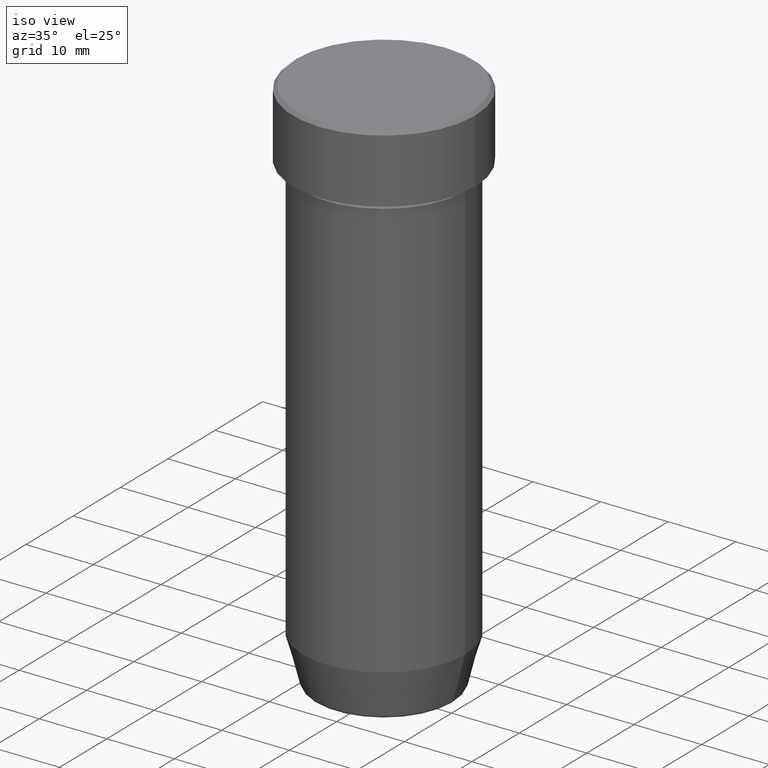
[diagram: clean part render]
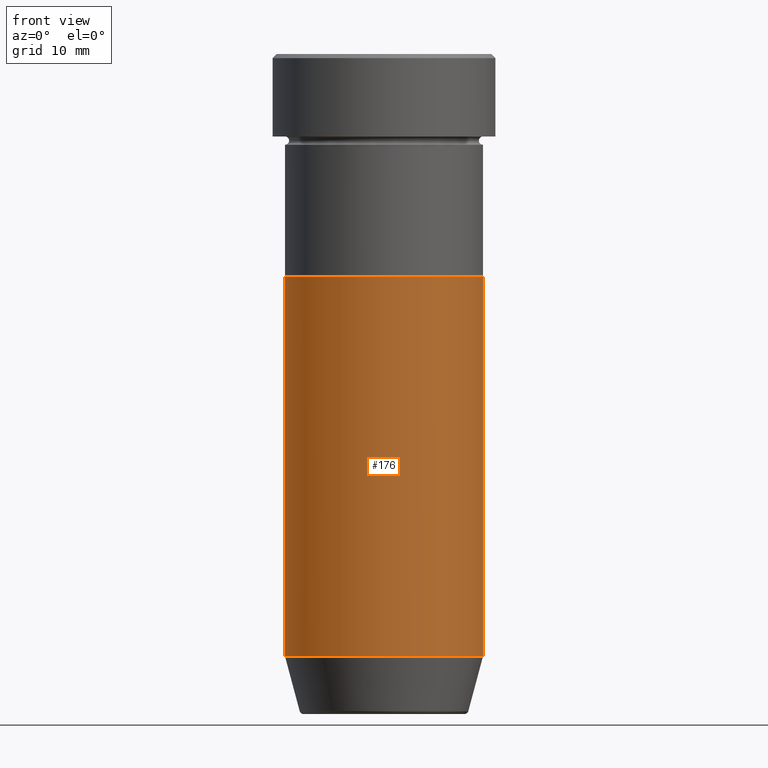
[diagram: tour spotlight — one face highlighted and labeled with its STEP entity id]
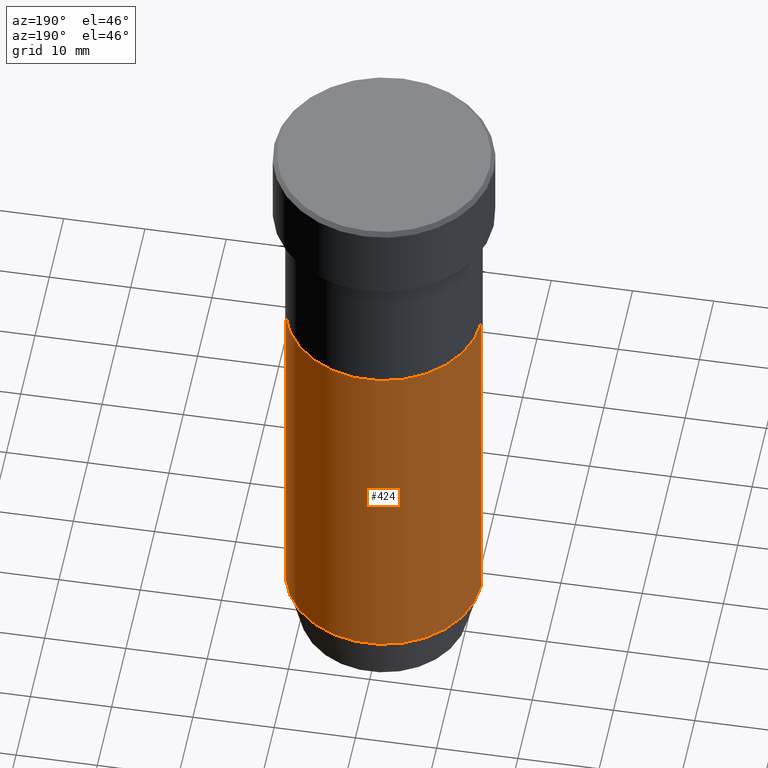
[diagram: tour spotlight — one face highlighted and labeled with its STEP entity id]
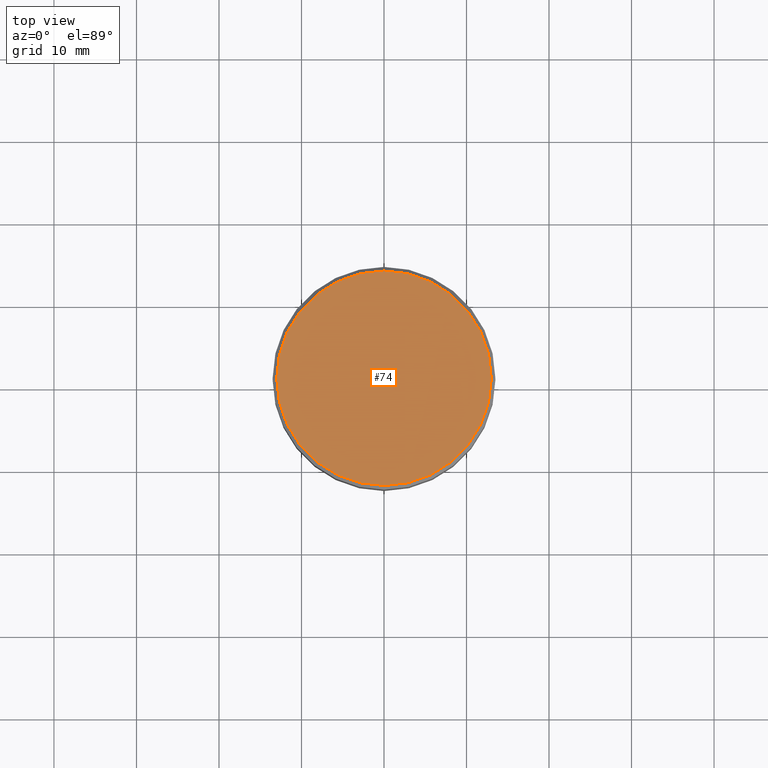
[diagram: tour spotlight — one face highlighted and labeled with its STEP entity id]
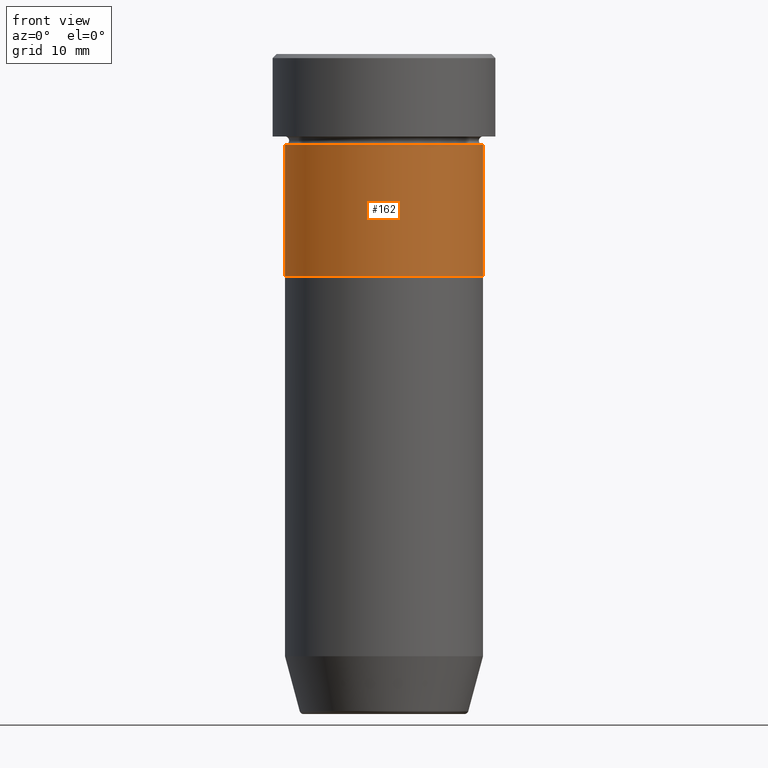
[diagram: tour spotlight — one face highlighted and labeled with its STEP entity id]
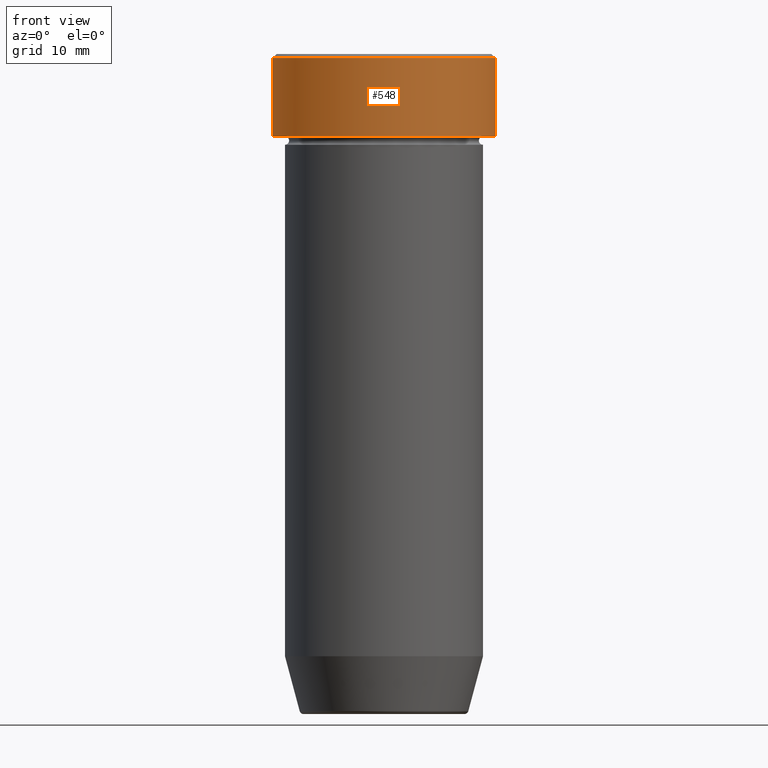
[diagram: tour spotlight — one face highlighted and labeled with its STEP entity id]
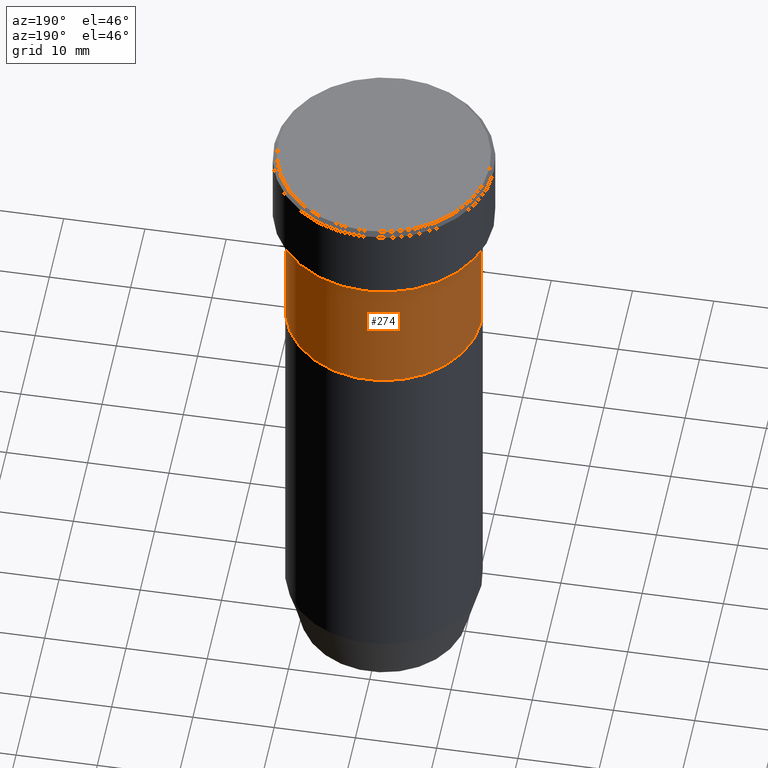
[diagram: tour spotlight — one face highlighted and labeled with its STEP entity id]
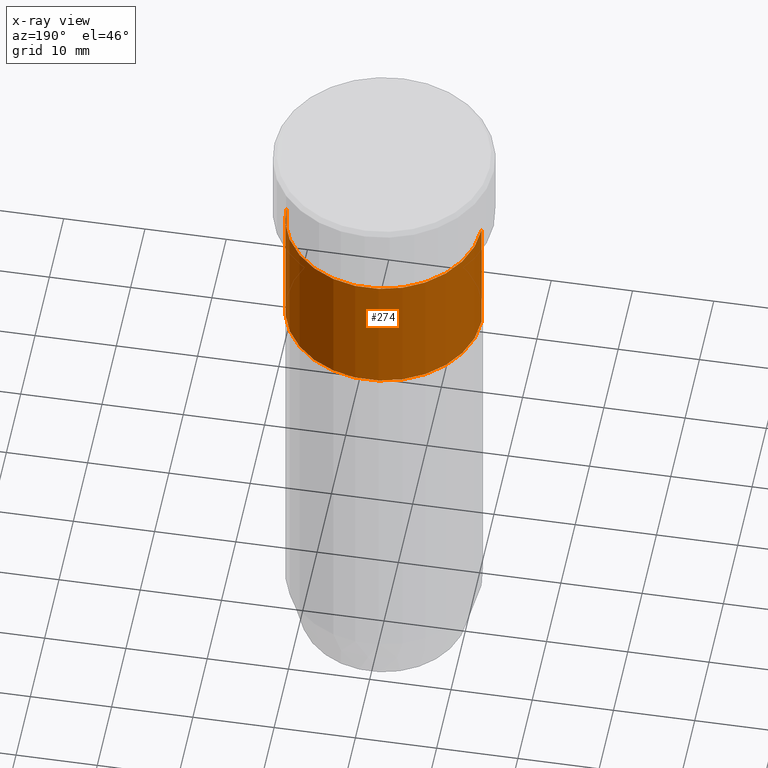
[diagram: x-ray of the same camera — body ghosted, this tour face saturated]
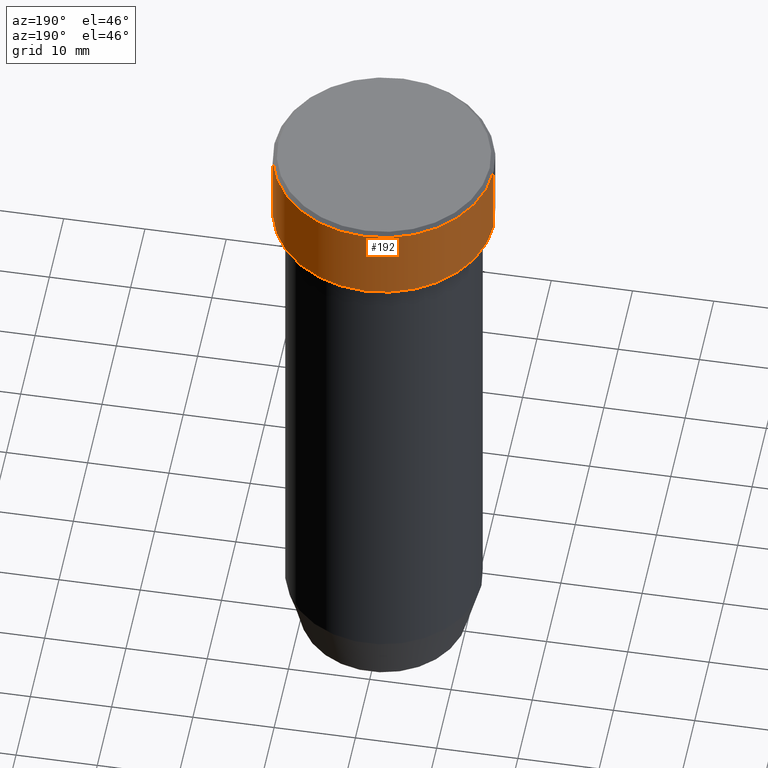
[diagram: tour spotlight — one face highlighted and labeled with its STEP entity id]
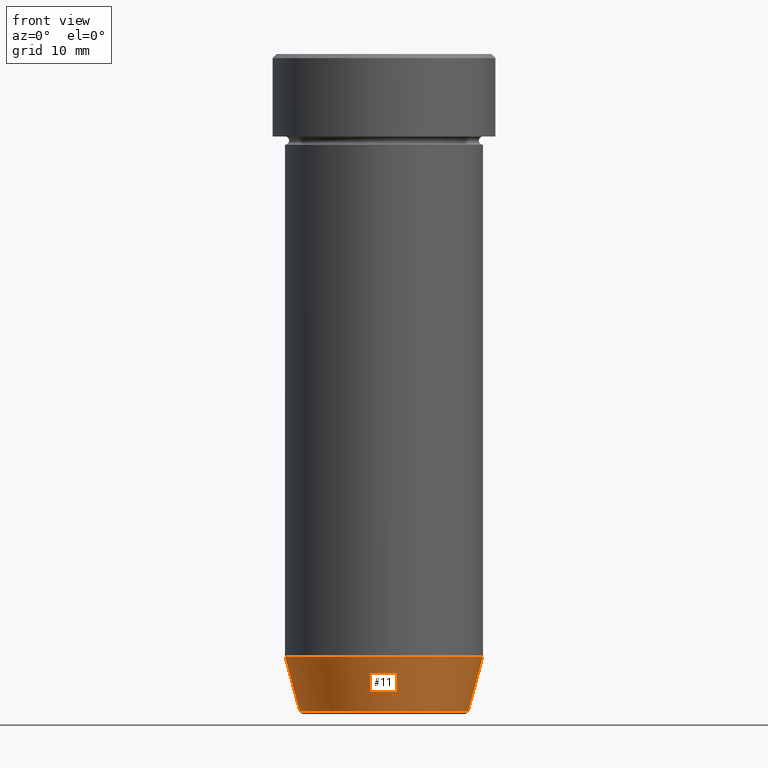
[diagram: tour spotlight — one face highlighted and labeled with its STEP entity id]
A machine part: a face-by-face anatomy tour. The part has 21 B-rep faces; the first image is the clean iso view, then the 8 largest visible faces are spotlighted one at a time (largest first), each with its STEP entity span.

Face 1 — front view, entity #176. In plain terms, the highlighted cylindrical surface (partial cylindrical patch) has radius 12 mm, axis along (-0, -0, 1).
Definition (entity closure, byte-faithful):
#15 = LINE ( 'NONE', #551, #505 ) ;
#47 = DIRECTION ( 'NONE',  ( -0.000000000000000000, -0.000000000000000000, 1.000000000000000000 ) ) ;
#49 = VERTEX_POINT ( 'NONE', #138 ) ;
#61 = ORIENTED_EDGE ( 'NONE', *, *, #129, .T. ) ;
#119 = LINE ( 'NONE', #261, #173 ) ;
#129 = EDGE_CURVE ( 'NONE', #49, #378, #578, .T. ) ;
#138 = CARTESIAN_POINT ( 'NONE',  ( -12.00000000000000000, 1.469576158976823947E-15, -73.00000000000000000 ) ) ;
#139 = AXIS2_PLACEMENT_3D ( 'NONE', #458, #47, #418 ) ;
#157 = CYLINDRICAL_SURFACE ( 'NONE', #172, 12.00000000000000000 ) ;
#169 = DIRECTION ( 'NONE',  ( -0.000000000000000000, -0.000000000000000000, 1.000000000000000000 ) ) ;
#172 = AXIS2_PLACEMENT_3D ( 'NONE', #506, #463, #509 ) ;
#173 = VECTOR ( 'NONE', #169, 1000.000000000000000 ) ;
#174 = CARTESIAN_POINT ( 'NONE',  ( -12.00000000000000000, 1.469576158976823947E-15, -27.00000000000000000 ) ) ;
#176 = ADVANCED_FACE ( 'NONE', ( #200 ), #157, .T. ) ;
#200 = FACE_OUTER_BOUND ( 'NONE', #203, .T. ) ;
#203 = EDGE_LOOP ( 'NONE', ( #271, #61, #419, #483 ) ) ;
#214 = CARTESIAN_POINT ( 'NONE',  ( 0.000000000000000000, 0.000000000000000000, -27.00000000000000000 ) ) ;
#235 = CIRCLE ( 'NONE', #285, 12.00000000000000000 ) ;
#238 = EDGE_CURVE ( 'NONE', #49, #450, #15, .T. ) ;
#239 = CARTESIAN_POINT ( 'NONE',  ( 12.00000000000000000, 0.000000000000000000, -27.00000000000000000 ) ) ;
#261 = CARTESIAN_POINT ( 'NONE',  ( 12.00000000000000000, 0.000000000000000000, 0.000000000000000000 ) ) ;
#271 = ORIENTED_EDGE ( 'NONE', *, *, #238, .F. ) ;
#285 = AXIS2_PLACEMENT_3D ( 'NONE', #214, #355, #303 ) ;
#301 = DIRECTION ( 'NONE',  ( -0.000000000000000000, -0.000000000000000000, 1.000000000000000000 ) ) ;
#303 = DIRECTION ( 'NONE',  ( 1.000000000000000000, 0.000000000000000000, 0.000000000000000000 ) ) ;
#355 = DIRECTION ( 'NONE',  ( -0.000000000000000000, -0.000000000000000000, 1.000000000000000000 ) ) ;
#378 = VERTEX_POINT ( 'NONE', #489 ) ;
#418 = DIRECTION ( 'NONE',  ( 1.000000000000000000, 0.000000000000000000, 0.000000000000000000 ) ) ;
#419 = ORIENTED_EDGE ( 'NONE', *, *, #478, .T. ) ;
#447 = EDGE_CURVE ( 'NONE', #450, #536, #235, .T. ) ;
#450 = VERTEX_POINT ( 'NONE', #174 ) ;
#458 = CARTESIAN_POINT ( 'NONE',  ( 0.000000000000000000, 0.000000000000000000, -73.00000000000000000 ) ) ;
#463 = DIRECTION ( 'NONE',  ( -0.000000000000000000, -0.000000000000000000, 1.000000000000000000 ) ) ;
#478 = EDGE_CURVE ( 'NONE', #378, #536, #119, .T. ) ;
#483 = ORIENTED_EDGE ( 'NONE', *, *, #447, .F. ) ;
#489 = CARTESIAN_POINT ( 'NONE',  ( 12.00000000000000000, 0.000000000000000000, -73.00000000000000000 ) ) ;
#505 = VECTOR ( 'NONE', #301, 1000.000000000000000 ) ;
#506 = CARTESIAN_POINT ( 'NONE',  ( 0.000000000000000000, 0.000000000000000000, 0.000000000000000000 ) ) ;
#509 = DIRECTION ( 'NONE',  ( 1.000000000000000000, 0.000000000000000000, 0.000000000000000000 ) ) ;
#536 = VERTEX_POINT ( 'NONE', #239 ) ;
#551 = CARTESIAN_POINT ( 'NONE',  ( -12.00000000000000000, 1.469576158976823947E-15, 0.000000000000000000 ) ) ;
#578 = CIRCLE ( 'NONE', #139, 12.00000000000000000 ) ;

Face 2 — auxiliary view, entity #424. In plain terms, the highlighted cylindrical surface (partial cylindrical patch) has radius 12 mm, axis along (-0, -0, 1).
Definition (entity closure, byte-faithful):
#15 = LINE ( 'NONE', #551, #505 ) ;
#49 = VERTEX_POINT ( 'NONE', #138 ) ;
#52 = DIRECTION ( 'NONE',  ( -0.000000000000000000, -0.000000000000000000, 1.000000000000000000 ) ) ;
#119 = LINE ( 'NONE', #261, #173 ) ;
#124 = DIRECTION ( 'NONE',  ( -0.000000000000000000, -0.000000000000000000, 1.000000000000000000 ) ) ;
#138 = CARTESIAN_POINT ( 'NONE',  ( -12.00000000000000000, 1.469576158976823947E-15, -73.00000000000000000 ) ) ;
#141 = EDGE_CURVE ( 'NONE', #536, #450, #220, .T. ) ;
#149 = AXIS2_PLACEMENT_3D ( 'NONE', #284, #52, #342 ) ;
#166 = DIRECTION ( 'NONE',  ( 1.000000000000000000, 0.000000000000000000, 0.000000000000000000 ) ) ;
#169 = DIRECTION ( 'NONE',  ( -0.000000000000000000, -0.000000000000000000, 1.000000000000000000 ) ) ;
#173 = VECTOR ( 'NONE', #169, 1000.000000000000000 ) ;
#174 = CARTESIAN_POINT ( 'NONE',  ( -12.00000000000000000, 1.469576158976823947E-15, -27.00000000000000000 ) ) ;
#220 = CIRCLE ( 'NONE', #226, 12.00000000000000000 ) ;
#224 = ORIENTED_EDGE ( 'NONE', *, *, #478, .F. ) ;
#226 = AXIS2_PLACEMENT_3D ( 'NONE', #498, #457, #273 ) ;
#238 = EDGE_CURVE ( 'NONE', #49, #450, #15, .T. ) ;
#239 = CARTESIAN_POINT ( 'NONE',  ( 12.00000000000000000, 0.000000000000000000, -27.00000000000000000 ) ) ;
#261 = CARTESIAN_POINT ( 'NONE',  ( 12.00000000000000000, 0.000000000000000000, 0.000000000000000000 ) ) ;
#273 = DIRECTION ( 'NONE',  ( 1.000000000000000000, 0.000000000000000000, 0.000000000000000000 ) ) ;
#284 = CARTESIAN_POINT ( 'NONE',  ( 0.000000000000000000, 0.000000000000000000, -73.00000000000000000 ) ) ;
#299 = AXIS2_PLACEMENT_3D ( 'NONE', #521, #124, #166 ) ;
#301 = DIRECTION ( 'NONE',  ( -0.000000000000000000, -0.000000000000000000, 1.000000000000000000 ) ) ;
#304 = EDGE_CURVE ( 'NONE', #378, #49, #401, .T. ) ;
#342 = DIRECTION ( 'NONE',  ( 1.000000000000000000, 0.000000000000000000, 0.000000000000000000 ) ) ;
#354 = CYLINDRICAL_SURFACE ( 'NONE', #299, 12.00000000000000000 ) ;
#378 = VERTEX_POINT ( 'NONE', #489 ) ;
#388 = ORIENTED_EDGE ( 'NONE', *, *, #304, .T. ) ;
#401 = CIRCLE ( 'NONE', #149, 12.00000000000000000 ) ;
#424 = ADVANCED_FACE ( 'NONE', ( #575 ), #354, .T. ) ;
#450 = VERTEX_POINT ( 'NONE', #174 ) ;
#457 = DIRECTION ( 'NONE',  ( -0.000000000000000000, -0.000000000000000000, 1.000000000000000000 ) ) ;
#478 = EDGE_CURVE ( 'NONE', #378, #536, #119, .T. ) ;
#489 = CARTESIAN_POINT ( 'NONE',  ( 12.00000000000000000, 0.000000000000000000, -73.00000000000000000 ) ) ;
#498 = CARTESIAN_POINT ( 'NONE',  ( 0.000000000000000000, 0.000000000000000000, -27.00000000000000000 ) ) ;
#505 = VECTOR ( 'NONE', #301, 1000.000000000000000 ) ;
#507 = ORIENTED_EDGE ( 'NONE', *, *, #141, .F. ) ;
#514 = ORIENTED_EDGE ( 'NONE', *, *, #238, .T. ) ;
#521 = CARTESIAN_POINT ( 'NONE',  ( 0.000000000000000000, 0.000000000000000000, 0.000000000000000000 ) ) ;
#536 = VERTEX_POINT ( 'NONE', #239 ) ;
#551 = CARTESIAN_POINT ( 'NONE',  ( -12.00000000000000000, 1.469576158976823947E-15, 0.000000000000000000 ) ) ;
#562 = EDGE_LOOP ( 'NONE', ( #388, #514, #507, #224 ) ) ;
#575 = FACE_OUTER_BOUND ( 'NONE', #562, .T. ) ;

Face 3 — top view, entity #74. In plain terms, the highlighted planar face has unit normal (0, -0, 1).
Definition (entity closure, byte-faithful):
#12 = CARTESIAN_POINT ( 'NONE',  ( 0.000000000000000000, 0.000000000000000000, 0.000000000000000000 ) ) ;
#33 = CIRCLE ( 'NONE', #316, 12.99999999999999645 ) ;
#40 = DIRECTION ( 'NONE',  ( -0.000000000000000000, -0.000000000000000000, 1.000000000000000000 ) ) ;
#54 = CARTESIAN_POINT ( 'NONE',  ( 12.99999999999999645, 1.622657008870242882E-15, 0.000000000000000000 ) ) ;
#69 = AXIS2_PLACEMENT_3D ( 'NONE', #281, #234, #539 ) ;
#74 = ADVANCED_FACE ( 'NONE', ( #87 ), #142, .T. ) ;
#79 = AXIS2_PLACEMENT_3D ( 'NONE', #321, #40, #104 ) ;
#87 = FACE_OUTER_BOUND ( 'NONE', #294, .T. ) ;
#104 = DIRECTION ( 'NONE',  ( 1.000000000000000000, 0.000000000000000000, 0.000000000000000000 ) ) ;
#142 = PLANE ( 'NONE',  #69 ) ;
#191 = CARTESIAN_POINT ( 'NONE',  ( -12.99999999999999645, 0.000000000000000000, 0.000000000000000000 ) ) ;
#204 = EDGE_CURVE ( 'NONE', #217, #510, #33, .T. ) ;
#217 = VERTEX_POINT ( 'NONE', #54 ) ;
#234 = DIRECTION ( 'NONE',  ( 0.000000000000000000, -0.000000000000000000, 1.000000000000000000 ) ) ;
#242 = ORIENTED_EDGE ( 'NONE', *, *, #592, .T. ) ;
#281 = CARTESIAN_POINT ( 'NONE',  ( 0.000000000000000000, 0.000000000000000000, 0.000000000000000000 ) ) ;
#294 = EDGE_LOOP ( 'NONE', ( #242, #331 ) ) ;
#316 = AXIS2_PLACEMENT_3D ( 'NONE', #12, #380, #429 ) ;
#321 = CARTESIAN_POINT ( 'NONE',  ( 0.000000000000000000, 0.000000000000000000, 0.000000000000000000 ) ) ;
#331 = ORIENTED_EDGE ( 'NONE', *, *, #204, .T. ) ;
#350 = CIRCLE ( 'NONE', #79, 12.99999999999999645 ) ;
#380 = DIRECTION ( 'NONE',  ( -0.000000000000000000, -0.000000000000000000, 1.000000000000000000 ) ) ;
#429 = DIRECTION ( 'NONE',  ( 1.000000000000000000, 0.000000000000000000, 0.000000000000000000 ) ) ;
#510 = VERTEX_POINT ( 'NONE', #191 ) ;
#539 = DIRECTION ( 'NONE',  ( 1.000000000000000000, 0.000000000000000000, 0.000000000000000000 ) ) ;
#592 = EDGE_CURVE ( 'NONE', #510, #217, #350, .T. ) ;

Face 4 — front view, entity #162. In plain terms, the highlighted cylindrical surface (partial cylindrical patch) has radius 12 mm, axis along (-0, -0, 1).
Definition (entity closure, byte-faithful):
#6 = VERTEX_POINT ( 'NONE', #322 ) ;
#46 = DIRECTION ( 'NONE',  ( -0.000000000000000000, -0.000000000000000000, 1.000000000000000000 ) ) ;
#66 = EDGE_CURVE ( 'NONE', #6, #291, #410, .T. ) ;
#81 = DIRECTION ( 'NONE',  ( 1.000000000000000000, 0.000000000000000000, 0.000000000000000000 ) ) ;
#101 = ORIENTED_EDGE ( 'NONE', *, *, #344, .F. ) ;
#102 = EDGE_CURVE ( 'NONE', #279, #594, #596, .T. ) ;
#137 = CARTESIAN_POINT ( 'NONE',  ( -12.00000000000000000, 1.469576158976823947E-15, 0.000000000000000000 ) ) ;
#146 = EDGE_CURVE ( 'NONE', #6, #279, #554, .T. ) ;
#153 = ORIENTED_EDGE ( 'NONE', *, *, #146, .T. ) ;
#162 = ADVANCED_FACE ( 'NONE', ( #233 ), #375, .T. ) ;
#178 = VECTOR ( 'NONE', #270, 1000.000000000000000 ) ;
#233 = FACE_OUTER_BOUND ( 'NONE', #564, .T. ) ;
#252 = CARTESIAN_POINT ( 'NONE',  ( -12.00000000000000000, 1.469576158976823947E-15, -11.00000000000000000 ) ) ;
#270 = DIRECTION ( 'NONE',  ( -0.000000000000000000, -0.000000000000000000, 1.000000000000000000 ) ) ;
#279 = VERTEX_POINT ( 'NONE', #479 ) ;
#291 = VERTEX_POINT ( 'NONE', #252 ) ;
#322 = CARTESIAN_POINT ( 'NONE',  ( -12.00000000000000000, 1.469576158976823947E-15, -27.00000000000000000 ) ) ;
#332 = CARTESIAN_POINT ( 'NONE',  ( 12.00000000000000000, 0.000000000000000000, 0.000000000000000000 ) ) ;
#344 = EDGE_CURVE ( 'NONE', #291, #594, #359, .T. ) ;
#346 = CARTESIAN_POINT ( 'NONE',  ( 0.000000000000000000, 0.000000000000000000, -11.00000000000000000 ) ) ;
#358 = AXIS2_PLACEMENT_3D ( 'NONE', #586, #546, #369 ) ;
#359 = CIRCLE ( 'NONE', #567, 12.00000000000000000 ) ;
#363 = DIRECTION ( 'NONE',  ( 1.000000000000000000, 0.000000000000000000, 0.000000000000000000 ) ) ;
#364 = VECTOR ( 'NONE', #595, 1000.000000000000000 ) ;
#369 = DIRECTION ( 'NONE',  ( 1.000000000000000000, 0.000000000000000000, 0.000000000000000000 ) ) ;
#375 = CYLINDRICAL_SURFACE ( 'NONE', #358, 12.00000000000000000 ) ;
#402 = DIRECTION ( 'NONE',  ( -0.000000000000000000, -0.000000000000000000, 1.000000000000000000 ) ) ;
#410 = LINE ( 'NONE', #137, #178 ) ;
#452 = CARTESIAN_POINT ( 'NONE',  ( 0.000000000000000000, 0.000000000000000000, -27.00000000000000000 ) ) ;
#453 = AXIS2_PLACEMENT_3D ( 'NONE', #452, #46, #81 ) ;
#479 = CARTESIAN_POINT ( 'NONE',  ( 12.00000000000000000, 0.000000000000000000, -27.00000000000000000 ) ) ;
#546 = DIRECTION ( 'NONE',  ( -0.000000000000000000, -0.000000000000000000, 1.000000000000000000 ) ) ;
#553 = CARTESIAN_POINT ( 'NONE',  ( 12.00000000000000000, 0.000000000000000000, -11.00000000000000000 ) ) ;
#554 = CIRCLE ( 'NONE', #453, 12.00000000000000000 ) ;
#564 = EDGE_LOOP ( 'NONE', ( #579, #153, #587, #101 ) ) ;
#567 = AXIS2_PLACEMENT_3D ( 'NONE', #346, #402, #363 ) ;
#579 = ORIENTED_EDGE ( 'NONE', *, *, #66, .F. ) ;
#586 = CARTESIAN_POINT ( 'NONE',  ( 0.000000000000000000, 0.000000000000000000, 0.000000000000000000 ) ) ;
#587 = ORIENTED_EDGE ( 'NONE', *, *, #102, .T. ) ;
#594 = VERTEX_POINT ( 'NONE', #553 ) ;
#595 = DIRECTION ( 'NONE',  ( -0.000000000000000000, -0.000000000000000000, 1.000000000000000000 ) ) ;
#596 = LINE ( 'NONE', #332, #364 ) ;

Face 5 — front view, entity #548. In plain terms, the highlighted cylindrical surface (partial cylindrical patch) has radius 13.5 mm, axis along (-0, -0, 1).
Definition (entity closure, byte-faithful):
#17 = CARTESIAN_POINT ( 'NONE',  ( -13.50000000000000000, 1.653273178848926867E-15, -0.5000000000000091038 ) ) ;
#41 = CARTESIAN_POINT ( 'NONE',  ( -13.50000000000000000, 1.653273178848926867E-15, 0.000000000000000000 ) ) ;
#42 = AXIS2_PLACEMENT_3D ( 'NONE', #347, #250, #245 ) ;
#44 = CARTESIAN_POINT ( 'NONE',  ( 13.50000000000000000, 0.000000000000000000, 0.000000000000000000 ) ) ;
#48 = EDGE_CURVE ( 'NONE', #571, #215, #308, .T. ) ;
#93 = EDGE_CURVE ( 'NONE', #107, #571, #593, .T. ) ;
#107 = VERTEX_POINT ( 'NONE', #330 ) ;
#135 = ORIENTED_EDGE ( 'NONE', *, *, #212, .T. ) ;
#155 = CARTESIAN_POINT ( 'NONE',  ( -13.50000000000000000, 1.653273178848926867E-15, -10.00000000000000000 ) ) ;
#171 = EDGE_CURVE ( 'NONE', #307, #215, #535, .T. ) ;
#181 = CARTESIAN_POINT ( 'NONE',  ( 0.000000000000000000, 0.000000000000000000, -0.5000000000000091038 ) ) ;
#182 = ORIENTED_EDGE ( 'NONE', *, *, #93, .T. ) ;
#183 = DIRECTION ( 'NONE',  ( -0.000000000000000000, -0.000000000000000000, 1.000000000000000000 ) ) ;
#212 = EDGE_CURVE ( 'NONE', #307, #107, #496, .T. ) ;
#215 = VERTEX_POINT ( 'NONE', #17 ) ;
#245 = DIRECTION ( 'NONE',  ( 1.000000000000000000, 0.000000000000000000, 0.000000000000000000 ) ) ;
#250 = DIRECTION ( 'NONE',  ( -0.000000000000000000, -0.000000000000000000, 1.000000000000000000 ) ) ;
#278 = DIRECTION ( 'NONE',  ( 0.000000000000000000, 0.000000000000000000, -1.000000000000000000 ) ) ;
#283 = VECTOR ( 'NONE', #183, 1000.000000000000000 ) ;
#307 = VERTEX_POINT ( 'NONE', #155 ) ;
#308 = CIRCLE ( 'NONE', #532, 13.50000000000000000 ) ;
#330 = CARTESIAN_POINT ( 'NONE',  ( 13.50000000000000000, 0.000000000000000000, -10.00000000000000000 ) ) ;
#347 = CARTESIAN_POINT ( 'NONE',  ( 0.000000000000000000, 0.000000000000000000, -10.00000000000000000 ) ) ;
#367 = DIRECTION ( 'NONE',  ( 1.000000000000000000, 0.000000000000000000, 0.000000000000000000 ) ) ;
#379 = FACE_OUTER_BOUND ( 'NONE', #487, .T. ) ;
#381 = CYLINDRICAL_SURFACE ( 'NONE', #395, 13.50000000000000000 ) ;
#395 = AXIS2_PLACEMENT_3D ( 'NONE', #460, #537, #367 ) ;
#411 = DIRECTION ( 'NONE',  ( 1.000000000000000000, 0.000000000000000000, 0.000000000000000000 ) ) ;
#444 = VECTOR ( 'NONE', #565, 1000.000000000000000 ) ;
#459 = ORIENTED_EDGE ( 'NONE', *, *, #171, .F. ) ;
#460 = CARTESIAN_POINT ( 'NONE',  ( 0.000000000000000000, 0.000000000000000000, 0.000000000000000000 ) ) ;
#468 = CARTESIAN_POINT ( 'NONE',  ( 13.50000000000000000, 0.000000000000000000, -0.5000000000000091038 ) ) ;
#487 = EDGE_LOOP ( 'NONE', ( #459, #135, #182, #530 ) ) ;
#496 = CIRCLE ( 'NONE', #42, 13.50000000000000000 ) ;
#530 = ORIENTED_EDGE ( 'NONE', *, *, #48, .T. ) ;
#532 = AXIS2_PLACEMENT_3D ( 'NONE', #181, #278, #411 ) ;
#535 = LINE ( 'NONE', #41, #444 ) ;
#537 = DIRECTION ( 'NONE',  ( -0.000000000000000000, -0.000000000000000000, 1.000000000000000000 ) ) ;
#548 = ADVANCED_FACE ( 'NONE', ( #379 ), #381, .T. ) ;
#565 = DIRECTION ( 'NONE',  ( -0.000000000000000000, -0.000000000000000000, 1.000000000000000000 ) ) ;
#571 = VERTEX_POINT ( 'NONE', #468 ) ;
#593 = LINE ( 'NONE', #44, #283 ) ;

Face 6 — auxiliary view, entity #274. An x-ray twin of the same camera follows (body ghosted, this face saturated) — the face is partly hidden behind the body. In plain terms, the highlighted cylindrical surface (partial cylindrical patch) has radius 12 mm, axis along (-0, -0, 1).
Definition (entity closure, byte-faithful):
#1 = CARTESIAN_POINT ( 'NONE',  ( 0.000000000000000000, 0.000000000000000000, -11.00000000000000000 ) ) ;
#4 = DIRECTION ( 'NONE',  ( -0.000000000000000000, -0.000000000000000000, 1.000000000000000000 ) ) ;
#6 = VERTEX_POINT ( 'NONE', #322 ) ;
#24 = ORIENTED_EDGE ( 'NONE', *, *, #570, .F. ) ;
#34 = EDGE_LOOP ( 'NONE', ( #484, #43, #24, #92 ) ) ;
#43 = ORIENTED_EDGE ( 'NONE', *, *, #66, .T. ) ;
#66 = EDGE_CURVE ( 'NONE', #6, #291, #410, .T. ) ;
#88 = CIRCLE ( 'NONE', #327, 12.00000000000000000 ) ;
#92 = ORIENTED_EDGE ( 'NONE', *, *, #102, .F. ) ;
#102 = EDGE_CURVE ( 'NONE', #279, #594, #596, .T. ) ;
#115 = CARTESIAN_POINT ( 'NONE',  ( 0.000000000000000000, 0.000000000000000000, 0.000000000000000000 ) ) ;
#137 = CARTESIAN_POINT ( 'NONE',  ( -12.00000000000000000, 1.469576158976823947E-15, 0.000000000000000000 ) ) ;
#144 = DIRECTION ( 'NONE',  ( -0.000000000000000000, -0.000000000000000000, 1.000000000000000000 ) ) ;
#147 = CYLINDRICAL_SURFACE ( 'NONE', #517, 12.00000000000000000 ) ;
#178 = VECTOR ( 'NONE', #270, 1000.000000000000000 ) ;
#185 = EDGE_CURVE ( 'NONE', #279, #6, #88, .T. ) ;
#193 = DIRECTION ( 'NONE',  ( 1.000000000000000000, 0.000000000000000000, 0.000000000000000000 ) ) ;
#194 = DIRECTION ( 'NONE',  ( 1.000000000000000000, 0.000000000000000000, 0.000000000000000000 ) ) ;
#196 = FACE_OUTER_BOUND ( 'NONE', #34, .T. ) ;
#206 = CARTESIAN_POINT ( 'NONE',  ( 0.000000000000000000, 0.000000000000000000, -27.00000000000000000 ) ) ;
#236 = AXIS2_PLACEMENT_3D ( 'NONE', #1, #287, #194 ) ;
#252 = CARTESIAN_POINT ( 'NONE',  ( -12.00000000000000000, 1.469576158976823947E-15, -11.00000000000000000 ) ) ;
#270 = DIRECTION ( 'NONE',  ( -0.000000000000000000, -0.000000000000000000, 1.000000000000000000 ) ) ;
#274 = ADVANCED_FACE ( 'NONE', ( #196 ), #147, .T. ) ;
#279 = VERTEX_POINT ( 'NONE', #479 ) ;
#287 = DIRECTION ( 'NONE',  ( -0.000000000000000000, -0.000000000000000000, 1.000000000000000000 ) ) ;
#291 = VERTEX_POINT ( 'NONE', #252 ) ;
#322 = CARTESIAN_POINT ( 'NONE',  ( -12.00000000000000000, 1.469576158976823947E-15, -27.00000000000000000 ) ) ;
#327 = AXIS2_PLACEMENT_3D ( 'NONE', #206, #4, #193 ) ;
#332 = CARTESIAN_POINT ( 'NONE',  ( 12.00000000000000000, 0.000000000000000000, 0.000000000000000000 ) ) ;
#333 = DIRECTION ( 'NONE',  ( 1.000000000000000000, 0.000000000000000000, 0.000000000000000000 ) ) ;
#364 = VECTOR ( 'NONE', #595, 1000.000000000000000 ) ;
#410 = LINE ( 'NONE', #137, #178 ) ;
#462 = CIRCLE ( 'NONE', #236, 12.00000000000000000 ) ;
#479 = CARTESIAN_POINT ( 'NONE',  ( 12.00000000000000000, 0.000000000000000000, -27.00000000000000000 ) ) ;
#484 = ORIENTED_EDGE ( 'NONE', *, *, #185, .T. ) ;
#517 = AXIS2_PLACEMENT_3D ( 'NONE', #115, #144, #333 ) ;
#553 = CARTESIAN_POINT ( 'NONE',  ( 12.00000000000000000, 0.000000000000000000, -11.00000000000000000 ) ) ;
#570 = EDGE_CURVE ( 'NONE', #594, #291, #462, .T. ) ;
#594 = VERTEX_POINT ( 'NONE', #553 ) ;
#595 = DIRECTION ( 'NONE',  ( -0.000000000000000000, -0.000000000000000000, 1.000000000000000000 ) ) ;
#596 = LINE ( 'NONE', #332, #364 ) ;

Face 7 — auxiliary view, entity #192. In plain terms, the highlighted cylindrical surface (partial cylindrical patch) has radius 13.5 mm, axis along (-0, -0, 1).
Definition (entity closure, byte-faithful):
#2 = DIRECTION ( 'NONE',  ( -0.000000000000000000, -0.000000000000000000, 1.000000000000000000 ) ) ;
#17 = CARTESIAN_POINT ( 'NONE',  ( -13.50000000000000000, 1.653273178848926867E-15, -0.5000000000000091038 ) ) ;
#41 = CARTESIAN_POINT ( 'NONE',  ( -13.50000000000000000, 1.653273178848926867E-15, 0.000000000000000000 ) ) ;
#44 = CARTESIAN_POINT ( 'NONE',  ( 13.50000000000000000, 0.000000000000000000, 0.000000000000000000 ) ) ;
#63 = FACE_OUTER_BOUND ( 'NONE', #209, .T. ) ;
#65 = CYLINDRICAL_SURFACE ( 'NONE', #409, 13.50000000000000000 ) ;
#93 = EDGE_CURVE ( 'NONE', #107, #571, #593, .T. ) ;
#99 = DIRECTION ( 'NONE',  ( 1.000000000000000000, 0.000000000000000000, 0.000000000000000000 ) ) ;
#107 = VERTEX_POINT ( 'NONE', #330 ) ;
#108 = ORIENTED_EDGE ( 'NONE', *, *, #561, .T. ) ;
#131 = AXIS2_PLACEMENT_3D ( 'NONE', #421, #269, #99 ) ;
#155 = CARTESIAN_POINT ( 'NONE',  ( -13.50000000000000000, 1.653273178848926867E-15, -10.00000000000000000 ) ) ;
#163 = DIRECTION ( 'NONE',  ( 1.000000000000000000, 0.000000000000000000, 0.000000000000000000 ) ) ;
#171 = EDGE_CURVE ( 'NONE', #307, #215, #535, .T. ) ;
#183 = DIRECTION ( 'NONE',  ( -0.000000000000000000, -0.000000000000000000, 1.000000000000000000 ) ) ;
#192 = ADVANCED_FACE ( 'NONE', ( #63 ), #65, .T. ) ;
#209 = EDGE_LOOP ( 'NONE', ( #289, #232, #108, #431 ) ) ;
#215 = VERTEX_POINT ( 'NONE', #17 ) ;
#219 = CARTESIAN_POINT ( 'NONE',  ( 0.000000000000000000, 0.000000000000000000, -10.00000000000000000 ) ) ;
#232 = ORIENTED_EDGE ( 'NONE', *, *, #171, .T. ) ;
#240 = DIRECTION ( 'NONE',  ( 1.000000000000000000, 0.000000000000000000, 0.000000000000000000 ) ) ;
#269 = DIRECTION ( 'NONE',  ( 0.000000000000000000, 0.000000000000000000, -1.000000000000000000 ) ) ;
#283 = VECTOR ( 'NONE', #183, 1000.000000000000000 ) ;
#289 = ORIENTED_EDGE ( 'NONE', *, *, #400, .T. ) ;
#307 = VERTEX_POINT ( 'NONE', #155 ) ;
#328 = AXIS2_PLACEMENT_3D ( 'NONE', #219, #569, #163 ) ;
#329 = CIRCLE ( 'NONE', #131, 13.50000000000000000 ) ;
#330 = CARTESIAN_POINT ( 'NONE',  ( 13.50000000000000000, 0.000000000000000000, -10.00000000000000000 ) ) ;
#400 = EDGE_CURVE ( 'NONE', #107, #307, #461, .T. ) ;
#409 = AXIS2_PLACEMENT_3D ( 'NONE', #465, #2, #240 ) ;
#421 = CARTESIAN_POINT ( 'NONE',  ( 0.000000000000000000, 0.000000000000000000, -0.5000000000000091038 ) ) ;
#431 = ORIENTED_EDGE ( 'NONE', *, *, #93, .F. ) ;
#444 = VECTOR ( 'NONE', #565, 1000.000000000000000 ) ;
#461 = CIRCLE ( 'NONE', #328, 13.50000000000000000 ) ;
#465 = CARTESIAN_POINT ( 'NONE',  ( 0.000000000000000000, 0.000000000000000000, 0.000000000000000000 ) ) ;
#468 = CARTESIAN_POINT ( 'NONE',  ( 13.50000000000000000, 0.000000000000000000, -0.5000000000000091038 ) ) ;
#535 = LINE ( 'NONE', #41, #444 ) ;
#561 = EDGE_CURVE ( 'NONE', #215, #571, #329, .T. ) ;
#565 = DIRECTION ( 'NONE',  ( -0.000000000000000000, -0.000000000000000000, 1.000000000000000000 ) ) ;
#569 = DIRECTION ( 'NONE',  ( -0.000000000000000000, -0.000000000000000000, 1.000000000000000000 ) ) ;
#571 = VERTEX_POINT ( 'NONE', #468 ) ;
#593 = LINE ( 'NONE', #44, #283 ) ;

Face 8 — front view, entity #11. In plain terms, the highlighted conical surface has half-angle 15 deg.
Definition (entity closure, byte-faithful):
#7 = ORIENTED_EDGE ( 'NONE', *, *, #129, .F. ) ;
#11 = ADVANCED_FACE ( 'NONE', ( #403 ), #337, .T. ) ;
#30 = DIRECTION ( 'NONE',  ( -0.000000000000000000, -0.000000000000000000, 1.000000000000000000 ) ) ;
#47 = DIRECTION ( 'NONE',  ( -0.000000000000000000, -0.000000000000000000, 1.000000000000000000 ) ) ;
#49 = VERTEX_POINT ( 'NONE', #138 ) ;
#90 = DIRECTION ( 'NONE',  ( -0.000000000000000000, -0.000000000000000000, 1.000000000000000000 ) ) ;
#97 = CARTESIAN_POINT ( 'NONE',  ( -10.12435565298214080, 1.239875974385398941E-15, -80.00000000000000000 ) ) ;
#129 = EDGE_CURVE ( 'NONE', #49, #378, #578, .T. ) ;
#138 = CARTESIAN_POINT ( 'NONE',  ( -12.00000000000000000, 1.469576158976823947E-15, -73.00000000000000000 ) ) ;
#139 = AXIS2_PLACEMENT_3D ( 'NONE', #458, #47, #418 ) ;
#152 = VERTEX_POINT ( 'NONE', #225 ) ;
#175 = LINE ( 'NONE', #267, #544 ) ;
#187 = VECTOR ( 'NONE', #383, 1000.000000000000114 ) ;
#222 = DIRECTION ( 'NONE',  ( -1.000000000000000000, 0.000000000000000000, 0.000000000000000000 ) ) ;
#225 = CARTESIAN_POINT ( 'NONE',  ( -10.22365507213719837, 1.360806402472383336E-15, -79.62940952255127058 ) ) ;
#237 = ORIENTED_EDGE ( 'NONE', *, *, #296, .F. ) ;
#248 = ORIENTED_EDGE ( 'NONE', *, *, #406, .T. ) ;
#256 = CARTESIAN_POINT ( 'NONE',  ( 10.22365507213719837, 0.000000000000000000, -79.62940952255127058 ) ) ;
#265 = AXIS2_PLACEMENT_3D ( 'NONE', #442, #30, #222 ) ;
#266 = CARTESIAN_POINT ( 'NONE',  ( 0.000000000000000000, 0.000000000000000000, -80.00000000000000000 ) ) ;
#267 = CARTESIAN_POINT ( 'NONE',  ( 10.12435565298214080, 0.000000000000000000, -80.00000000000000000 ) ) ;
#293 = EDGE_LOOP ( 'NONE', ( #237, #574, #248, #7 ) ) ;
#296 = EDGE_CURVE ( 'NONE', #152, #49, #503, .T. ) ;
#313 = DIRECTION ( 'NONE',  ( 0.2588190451025206840, 0.000000000000000000, 0.9659258262890683122 ) ) ;
#337 = CONICAL_SURFACE ( 'NONE', #415, 10.12435565298214080, 0.2617993877991493523 ) ;
#378 = VERTEX_POINT ( 'NONE', #489 ) ;
#383 = DIRECTION ( 'NONE',  ( -0.2588190451025206840, 3.169619151431763092E-17, 0.9659258262890683122 ) ) ;
#403 = FACE_OUTER_BOUND ( 'NONE', #293, .T. ) ;
#406 = EDGE_CURVE ( 'NONE', #474, #378, #175, .T. ) ;
#415 = AXIS2_PLACEMENT_3D ( 'NONE', #266, #90, #582 ) ;
#418 = DIRECTION ( 'NONE',  ( 1.000000000000000000, 0.000000000000000000, 0.000000000000000000 ) ) ;
#442 = CARTESIAN_POINT ( 'NONE',  ( 0.000000000000000000, 0.000000000000000000, -79.62940952255127058 ) ) ;
#458 = CARTESIAN_POINT ( 'NONE',  ( 0.000000000000000000, 0.000000000000000000, -73.00000000000000000 ) ) ;
#474 = VERTEX_POINT ( 'NONE', #256 ) ;
#489 = CARTESIAN_POINT ( 'NONE',  ( 12.00000000000000000, 0.000000000000000000, -73.00000000000000000 ) ) ;
#495 = EDGE_CURVE ( 'NONE', #152, #474, #527, .T. ) ;
#503 = LINE ( 'NONE', #97, #187 ) ;
#527 = CIRCLE ( 'NONE', #265, 10.22365507213719837 ) ;
#544 = VECTOR ( 'NONE', #313, 1000.000000000000114 ) ;
#574 = ORIENTED_EDGE ( 'NONE', *, *, #495, .T. ) ;
#578 = CIRCLE ( 'NONE', #139, 12.00000000000000000 ) ;
#582 = DIRECTION ( 'NONE',  ( 1.000000000000000000, 0.000000000000000000, 0.000000000000000000 ) ) ;